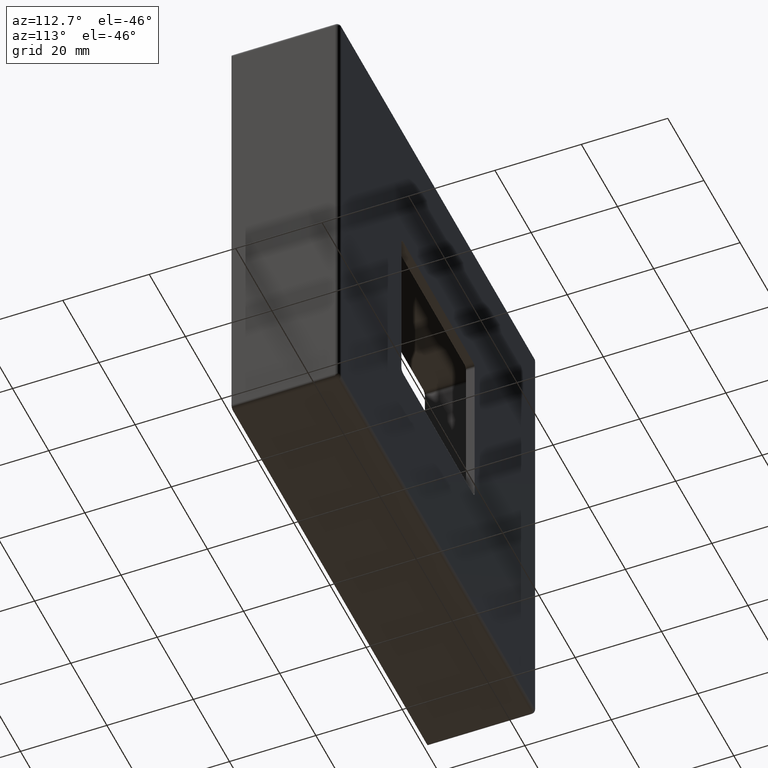
[diagram: clean part render]
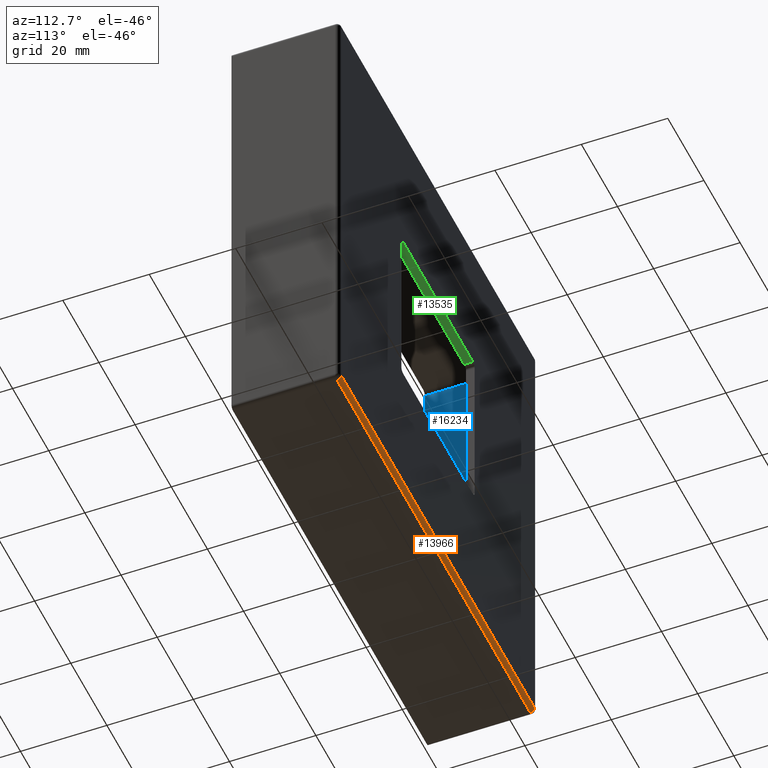
[diagram: same view with three faces highlighted in distinct colors, each labeled with its STEP entity id]
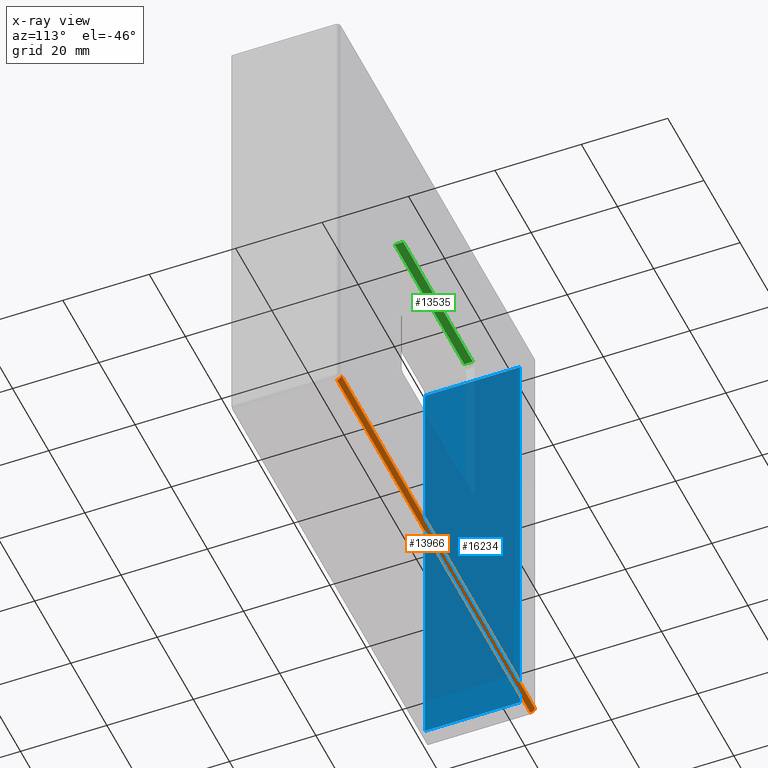
[diagram: x-ray of the same camera — body ghosted, the three highlighted faces saturated]
A machine part, auxiliary view with three faces highlighted in distinct colors.
The next image is the same camera in x-ray (body ghosted, the three faces saturated) — at least one of them is partly hidden behind the body in this view.
Their STEP definitions:

[orange] entity #13966 — the highlighted cylindrical surface (edge-blend (fillet) strip) has radius 1 mm, axis along (1, 0, -0).
#21 = CARTESIAN_POINT ( 'NONE',  ( -53.50000000000000711, 24.00000000000000000, -54.50000000000000000 ) ) ;
#162 = EDGE_CURVE ( 'NONE', #14062, #4052, #13760, .T. ) ;
#1842 = DIRECTION ( 'NONE',  ( -1.000000000000000000, 0.000000000000000000, 0.000000000000000000 ) ) ;
#2168 = EDGE_CURVE ( 'NONE', #4052, #6477, #8350, .T. ) ;
#2291 = DIRECTION ( 'NONE',  ( -1.000000000000000000, 0.000000000000000000, 6.365957710006634050E-17 ) ) ;
#3041 = EDGE_CURVE ( 'NONE', #6477, #13274, #14941, .T. ) ;
#3167 = EDGE_LOOP ( 'NONE', ( #7342, #16337, #10294, #11727 ) ) ;
#3558 = AXIS2_PLACEMENT_3D ( 'NONE', #15402, #9389, #13394 ) ;
#4052 = VERTEX_POINT ( 'NONE', #8588 ) ;
#4307 = CARTESIAN_POINT ( 'NONE',  ( 53.49999999999997868, 24.00000000000000000, -53.50000000000000711 ) ) ;
#4923 = CARTESIAN_POINT ( 'NONE',  ( -54.50000000000000711, 25.00000000000000000, -53.50000000000000000 ) ) ;
#5946 = AXIS2_PLACEMENT_3D ( 'NONE', #9516, #1842, #5962 ) ;
#5962 = DIRECTION ( 'NONE',  ( 0.000000000000000000, 0.000000000000000000, 1.000000000000000000 ) ) ;
#6477 = VERTEX_POINT ( 'NONE', #21 ) ;
#6914 = CIRCLE ( 'NONE', #13308, 1.000000000000000888 ) ;
#7325 = FACE_OUTER_BOUND ( 'NONE', #3167, .T. ) ;
#7342 = ORIENTED_EDGE ( 'NONE', *, *, #14473, .F. ) ;
#8249 = DIRECTION ( 'NONE',  ( 6.938893903907222067E-15, 1.000000000000000000, 0.000000000000000000 ) ) ;
#8350 = CIRCLE ( 'NONE', #5946, 1.000000000000000888 ) ;
#8588 = CARTESIAN_POINT ( 'NONE',  ( -53.50000000000000711, 25.00000000000000000, -53.50000000000000000 ) ) ;
#9389 = DIRECTION ( 'NONE',  ( 1.000000000000000000, 0.000000000000000000, -6.365957710006634050E-17 ) ) ;
#9516 = CARTESIAN_POINT ( 'NONE',  ( -53.50000000000000711, 24.00000000000000000, -53.50000000000000000 ) ) ;
#9634 = DIRECTION ( 'NONE',  ( 1.000000000000000000, -6.938893903907221278E-15, 0.000000000000000000 ) ) ;
#10294 = ORIENTED_EDGE ( 'NONE', *, *, #2168, .F. ) ;
#10339 = VECTOR ( 'NONE', #13206, 1000.000000000000000 ) ;
#11727 = ORIENTED_EDGE ( 'NONE', *, *, #162, .F. ) ;
#13206 = DIRECTION ( 'NONE',  ( 1.000000000000000000, -0.000000000000000000, -6.365957710006634050E-17 ) ) ;
#13274 = VERTEX_POINT ( 'NONE', #14009 ) ;
#13308 = AXIS2_PLACEMENT_3D ( 'NONE', #4307, #9634, #8249 ) ;
#13394 = DIRECTION ( 'NONE',  ( -6.365957710006625421E-17, 0.000000000000000000, -1.000000000000000000 ) ) ;
#13760 = LINE ( 'NONE', #4923, #14150 ) ;
#13966 = ADVANCED_FACE ( 'NONE', ( #7325 ), #14510, .T. ) ;
#14009 = CARTESIAN_POINT ( 'NONE',  ( 53.49999999999997868, 24.00000000000000000, -54.50000000000000711 ) ) ;
#14062 = VERTEX_POINT ( 'NONE', #15844 ) ;
#14150 = VECTOR ( 'NONE', #2291, 1000.000000000000000 ) ;
#14473 = EDGE_CURVE ( 'NONE', #13274, #14062, #6914, .T. ) ;
#14510 = CYLINDRICAL_SURFACE ( 'NONE', #3558, 1.000000000000000888 ) ;
#14674 = CARTESIAN_POINT ( 'NONE',  ( 54.49999999999998579, 24.00000000000000000, -54.50000000000000711 ) ) ;
#14941 = LINE ( 'NONE', #14674, #10339 ) ;
#15402 = CARTESIAN_POINT ( 'NONE',  ( -3.405787374853549303E-15, 24.00000000000000000, -53.50000000000000711 ) ) ;
#15844 = CARTESIAN_POINT ( 'NONE',  ( 53.49999999999998579, 25.00000000000000000, -53.50000000000000711 ) ) ;
#16337 = ORIENTED_EDGE ( 'NONE', *, *, #3041, .F. ) ;

[blue] entity #16234 — the highlighted planar face has unit normal (1, 0, -0).
#561 = VERTEX_POINT ( 'NONE', #8893 ) ;
#995 = VECTOR ( 'NONE', #13169, 1000.000000000000000 ) ;
#1360 = ORIENTED_EDGE ( 'NONE', *, *, #10485, .T. ) ;
#1950 = EDGE_LOOP ( 'NONE', ( #11498, #4775, #1360, #7845 ) ) ;
#1980 = VECTOR ( 'NONE', #2524, 1000.000000000000000 ) ;
#2376 = LINE ( 'NONE', #6904, #1980 ) ;
#2524 = DIRECTION ( 'NONE',  ( 1.273191542001326810E-16, -0.000000000000000000, 1.000000000000000000 ) ) ;
#4520 = LINE ( 'NONE', #9387, #15525 ) ;
#4553 = CARTESIAN_POINT ( 'NONE',  ( -52.49999999999999289, 22.00000000000000000, 51.49999999999998579 ) ) ;
#4775 = ORIENTED_EDGE ( 'NONE', *, *, #10071, .T. ) ;
#5476 = DIRECTION ( 'NONE',  ( -1.273191542001326810E-16, 0.000000000000000000, -1.000000000000000000 ) ) ;
#6232 = CARTESIAN_POINT ( 'NONE',  ( -52.50000000000000711, 22.00000000000000000, -51.50000000000000000 ) ) ;
#6349 = AXIS2_PLACEMENT_3D ( 'NONE', #8291, #10731, #5476 ) ;
#6904 = CARTESIAN_POINT ( 'NONE',  ( -52.50000000000000711, 0.000000000000000000, -54.50000000000000000 ) ) ;
#7753 = DIRECTION ( 'NONE',  ( 1.273191542001326810E-16, -0.000000000000000000, 1.000000000000000000 ) ) ;
#7845 = ORIENTED_EDGE ( 'NONE', *, *, #13431, .T. ) ;
#8291 = CARTESIAN_POINT ( 'NONE',  ( -52.50000000000000711, 25.00000000000000000, -54.50000000000000000 ) ) ;
#8297 = FACE_OUTER_BOUND ( 'NONE', #1950, .T. ) ;
#8428 = LINE ( 'NONE', #15675, #995 ) ;
#8893 = CARTESIAN_POINT ( 'NONE',  ( -52.50000000000000711, 0.000000000000000000, -51.50000000000000000 ) ) ;
#9387 = CARTESIAN_POINT ( 'NONE',  ( -52.49999999999999289, 0.000000000000000000, 51.49999999999998579 ) ) ;
#9602 = DIRECTION ( 'NONE',  ( 0.000000000000000000, -1.000000000000000000, 0.000000000000000000 ) ) ;
#10071 = EDGE_CURVE ( 'NONE', #561, #11404, #8428, .T. ) ;
#10485 = EDGE_CURVE ( 'NONE', #11404, #15498, #12810, .T. ) ;
#10731 = DIRECTION ( 'NONE',  ( 1.000000000000000000, 0.000000000000000000, -1.273191542001326810E-16 ) ) ;
#11404 = VERTEX_POINT ( 'NONE', #6232 ) ;
#11498 = ORIENTED_EDGE ( 'NONE', *, *, #12527, .F. ) ;
#12020 = PLANE ( 'NONE',  #6349 ) ;
#12527 = EDGE_CURVE ( 'NONE', #561, #13254, #2376, .T. ) ;
#12810 = LINE ( 'NONE', #15399, #16596 ) ;
#13169 = DIRECTION ( 'NONE',  ( -0.000000000000000000, 1.000000000000000000, -0.000000000000000000 ) ) ;
#13254 = VERTEX_POINT ( 'NONE', #15294 ) ;
#13431 = EDGE_CURVE ( 'NONE', #15498, #13254, #4520, .T. ) ;
#15294 = CARTESIAN_POINT ( 'NONE',  ( -52.49999999999999289, 0.000000000000000000, 51.49999999999998579 ) ) ;
#15399 = CARTESIAN_POINT ( 'NONE',  ( -52.50000000000000711, 22.00000000000000000, -54.50000000000000000 ) ) ;
#15498 = VERTEX_POINT ( 'NONE', #4553 ) ;
#15525 = VECTOR ( 'NONE', #9602, 1000.000000000000000 ) ;
#15675 = CARTESIAN_POINT ( 'NONE',  ( -52.50000000000000711, 23.00000000000000000, -51.50000000000000000 ) ) ;
#16234 = ADVANCED_FACE ( 'NONE', ( #8297 ), #12020, .T. ) ;
#16596 = VECTOR ( 'NONE', #7753, 1000.000000000000000 ) ;

[green] entity #13535 — the highlighted planar face has unit normal (-0, 0, 1).
#27 = ORIENTED_EDGE ( 'NONE', *, *, #14779, .T. ) ;
#538 = AXIS2_PLACEMENT_3D ( 'NONE', #15005, #11032, #738 ) ;
#548 = CARTESIAN_POINT ( 'NONE',  ( 19.25000000000000000, 23.00000000000000000, 20.24999999999999645 ) ) ;
#738 = DIRECTION ( 'NONE',  ( 1.000000000000000000, 0.000000000000000000, 0.000000000000000000 ) ) ;
#1051 = CARTESIAN_POINT ( 'NONE',  ( 19.25000000000000000, 25.00000000000000000, 20.24999999999999645 ) ) ;
#1694 = LINE ( 'NONE', #13915, #3695 ) ;
#1909 = VECTOR ( 'NONE', #6456, 1000.000000000000000 ) ;
#2421 = ORIENTED_EDGE ( 'NONE', *, *, #7840, .T. ) ;
#2633 = CARTESIAN_POINT ( 'NONE',  ( 19.25000000000000000, 23.00000000000000000, 20.24999999999999645 ) ) ;
#2960 = CARTESIAN_POINT ( 'NONE',  ( -19.25000000000000000, 23.00000000000000000, 20.24999999999999645 ) ) ;
#3129 = VERTEX_POINT ( 'NONE', #2960 ) ;
#3695 = VECTOR ( 'NONE', #3747, 1000.000000000000000 ) ;
#3747 = DIRECTION ( 'NONE',  ( 0.000000000000000000, 1.000000000000000000, -0.000000000000000000 ) ) ;
#4246 = LINE ( 'NONE', #2633, #6038 ) ;
#5386 = ORIENTED_EDGE ( 'NONE', *, *, #15216, .T. ) ;
#6038 = VECTOR ( 'NONE', #12773, 1000.000000000000000 ) ;
#6210 = VERTEX_POINT ( 'NONE', #11811 ) ;
#6456 = DIRECTION ( 'NONE',  ( 1.000000000000000000, 0.000000000000000000, 0.000000000000000000 ) ) ;
#7047 = VERTEX_POINT ( 'NONE', #548 ) ;
#7187 = LINE ( 'NONE', #12166, #8994 ) ;
#7840 = EDGE_CURVE ( 'NONE', #10683, #7047, #4246, .T. ) ;
#8262 = DIRECTION ( 'NONE',  ( 1.000000000000000000, -0.000000000000000000, 0.000000000000000000 ) ) ;
#8994 = VECTOR ( 'NONE', #8262, 1000.000000000000000 ) ;
#10299 = LINE ( 'NONE', #12997, #1909 ) ;
#10683 = VERTEX_POINT ( 'NONE', #1051 ) ;
#11032 = DIRECTION ( 'NONE',  ( -0.000000000000000000, 0.000000000000000000, 1.000000000000000000 ) ) ;
#11811 = CARTESIAN_POINT ( 'NONE',  ( -19.25000000000000000, 25.00000000000000000, 20.24999999999999645 ) ) ;
#12166 = CARTESIAN_POINT ( 'NONE',  ( 0.000000000000000000, 23.00000000000000000, 20.24999999999999645 ) ) ;
#12215 = PLANE ( 'NONE',  #538 ) ;
#12379 = EDGE_CURVE ( 'NONE', #3129, #7047, #7187, .T. ) ;
#12773 = DIRECTION ( 'NONE',  ( -0.000000000000000000, -1.000000000000000000, 0.000000000000000000 ) ) ;
#12997 = CARTESIAN_POINT ( 'NONE',  ( -20.25000000000000000, 25.00000000000000000, 20.24999999999999645 ) ) ;
#13021 = EDGE_LOOP ( 'NONE', ( #16033, #27, #5386, #2421 ) ) ;
#13330 = FACE_OUTER_BOUND ( 'NONE', #13021, .T. ) ;
#13535 = ADVANCED_FACE ( 'NONE', ( #13330 ), #12215, .F. ) ;
#13915 = CARTESIAN_POINT ( 'NONE',  ( -19.25000000000000000, 25.00000000000000000, 20.24999999999999645 ) ) ;
#14779 = EDGE_CURVE ( 'NONE', #3129, #6210, #1694, .T. ) ;
#15005 = CARTESIAN_POINT ( 'NONE',  ( -20.25000000000000000, 0.000000000000000000, 20.24999999999999645 ) ) ;
#15216 = EDGE_CURVE ( 'NONE', #6210, #10683, #10299, .T. ) ;
#16033 = ORIENTED_EDGE ( 'NONE', *, *, #12379, .F. ) ;